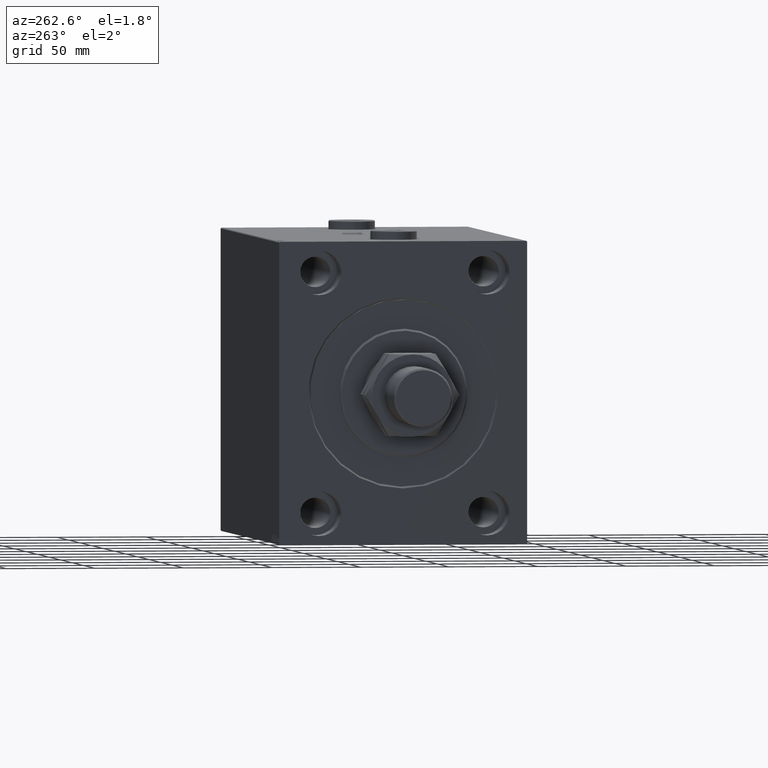
[diagram: clean part render]
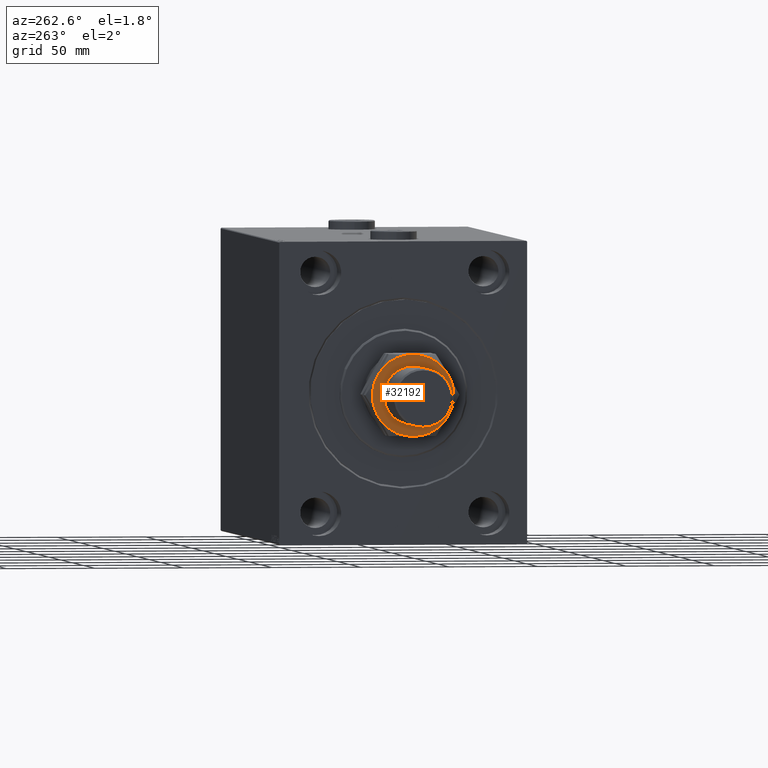
[diagram: same view with one face highlighted and labeled with its STEP entity id]
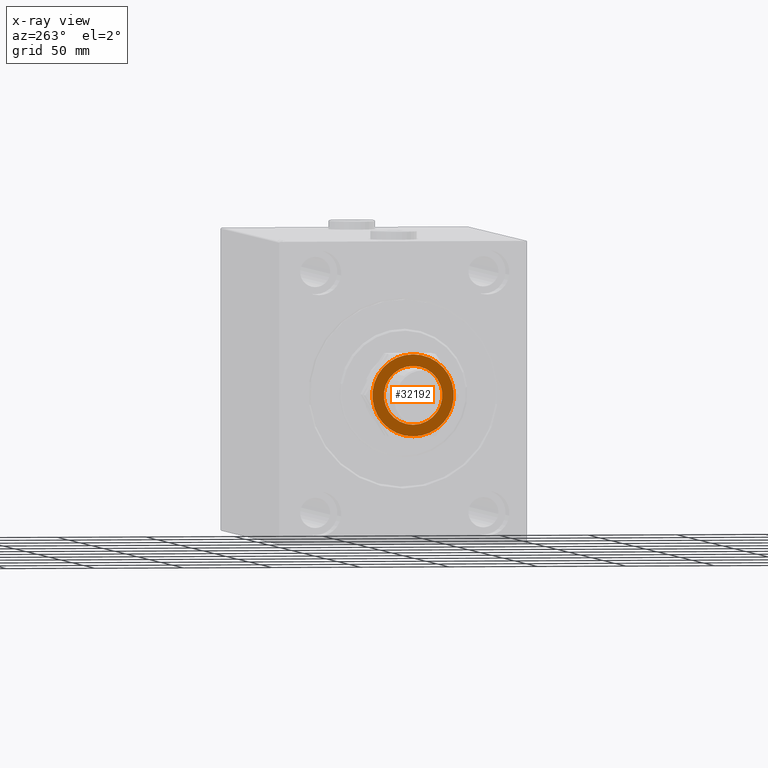
[diagram: x-ray of the same camera — body ghosted, the highlighted face saturated]
A machine part, auxiliary view. The second image highlights one B-rep face of the part: STEP entity #32192.
The next image is the same camera in x-ray: the body ghosted, the highlighted face saturated — about 0% of this face is hidden behind the body in this view.
In plain terms, the highlighted planar face has unit normal (-1, 0, 0).
Its self-contained STEP definition (entity closure, byte-faithful):
#575 = CIRCLE ( 'NONE', #15741, 22.99999999999999645 ) ;
#716 = EDGE_LOOP ( 'NONE', ( #29755, #39332 ) ) ;
#1366 = DIRECTION ( 'NONE',  ( 0.000000000000000000, 0.000000000000000000, 1.000000000000000000 ) ) ;
#1997 = DIRECTION ( 'NONE',  ( 0.000000000000000000, 0.000000000000000000, 1.000000000000000000 ) ) ;
#2565 = AXIS2_PLACEMENT_3D ( 'NONE', #6525, #43348, #43110 ) ;
#2655 = CARTESIAN_POINT ( 'NONE',  ( 0.000000000000000000, 0.000000000000000000, 28.00000000000000000 ) ) ;
#3219 = AXIS2_PLACEMENT_3D ( 'NONE', #2655, #38537, #20255 ) ;
#5248 = DIRECTION ( 'NONE',  ( 1.000000000000000000, 0.000000000000000000, 0.000000000000000000 ) ) ;
#6373 = CARTESIAN_POINT ( 'NONE',  ( 16.50000000000000000, 0.000000000000000000, 28.00000000000000000 ) ) ;
#6525 = CARTESIAN_POINT ( 'NONE',  ( 0.000000000000000000, 0.000000000000000000, 28.00000000000000000 ) ) ;
#7456 = CARTESIAN_POINT ( 'NONE',  ( -11.49999999999999822, 19.91858428704208706, 28.00000000000000000 ) ) ;
#8632 = CIRCLE ( 'NONE', #2565, 22.99999999999999645 ) ;
#9312 = FACE_OUTER_BOUND ( 'NONE', #9918, .T. ) ;
#9768 = EDGE_CURVE ( 'NONE', #40164, #23533, #13343, .T. ) ;
#9918 = EDGE_LOOP ( 'NONE', ( #28875, #43156, #43723, #41313, #32951, #42946 ) ) ;
#9936 = VERTEX_POINT ( 'NONE', #43073 ) ;
#10008 = FACE_BOUND ( 'NONE', #716, .T. ) ;
#10386 = AXIS2_PLACEMENT_3D ( 'NONE', #30433, #44938, #5248 ) ;
#12501 = CARTESIAN_POINT ( 'NONE',  ( 22.99999999999999645, 0.000000000000000000, 28.00000000000000000 ) ) ;
#12684 = EDGE_CURVE ( 'NONE', #33861, #9936, #25574, .T. ) ;
#13086 = DIRECTION ( 'NONE',  ( 1.000000000000000000, 0.000000000000000000, 0.000000000000000000 ) ) ;
#13343 = CIRCLE ( 'NONE', #43703, 22.99999999999999645 ) ;
#13520 = EDGE_CURVE ( 'NONE', #23384, #31201, #575, .T. ) ;
#13945 = CIRCLE ( 'NONE', #46573, 16.50000000000000000 ) ;
#15741 = AXIS2_PLACEMENT_3D ( 'NONE', #26459, #1997, #30036 ) ;
#17000 = AXIS2_PLACEMENT_3D ( 'NONE', #30667, #17111, #13086 ) ;
#17111 = DIRECTION ( 'NONE',  ( 0.000000000000000000, 0.000000000000000000, 1.000000000000000000 ) ) ;
#17125 = VERTEX_POINT ( 'NONE', #17833 ) ;
#17161 = EDGE_CURVE ( 'NONE', #17125, #23384, #22625, .T. ) ;
#17792 = CIRCLE ( 'NONE', #17000, 22.99999999999999645 ) ;
#17833 = CARTESIAN_POINT ( 'NONE',  ( -22.99999999999999645, 0.000000000000000000, 28.00000000000000000 ) ) ;
#19363 = DIRECTION ( 'NONE',  ( 1.000000000000000000, 0.000000000000000000, 0.000000000000000000 ) ) ;
#20255 = DIRECTION ( 'NONE',  ( 1.000000000000000000, 0.000000000000000000, -0.000000000000000000 ) ) ;
#20302 = EDGE_CURVE ( 'NONE', #23533, #17125, #41614, .T. ) ;
#22625 = CIRCLE ( 'NONE', #23414, 22.99999999999999645 ) ;
#23384 = VERTEX_POINT ( 'NONE', #23872 ) ;
#23414 = AXIS2_PLACEMENT_3D ( 'NONE', #42545, #38752, #46829 ) ;
#23533 = VERTEX_POINT ( 'NONE', #7456 ) ;
#23872 = CARTESIAN_POINT ( 'NONE',  ( -11.50000000000000533, -19.91858428704208706, 28.00000000000000000 ) ) ;
#25200 = VERTEX_POINT ( 'NONE', #12501 ) ;
#25574 = CIRCLE ( 'NONE', #10386, 16.50000000000000000 ) ;
#26459 = CARTESIAN_POINT ( 'NONE',  ( 0.000000000000000000, 0.000000000000000000, 28.00000000000000000 ) ) ;
#26782 = DIRECTION ( 'NONE',  ( 1.000000000000000000, 0.000000000000000000, 0.000000000000000000 ) ) ;
#28875 = ORIENTED_EDGE ( 'NONE', *, *, #42452, .T. ) ;
#29755 = ORIENTED_EDGE ( 'NONE', *, *, #12684, .T. ) ;
#29821 = DIRECTION ( 'NONE',  ( -0.000000000000000000, -0.000000000000000000, -1.000000000000000000 ) ) ;
#30036 = DIRECTION ( 'NONE',  ( 1.000000000000000000, 0.000000000000000000, 0.000000000000000000 ) ) ;
#30433 = CARTESIAN_POINT ( 'NONE',  ( 0.000000000000000000, 0.000000000000000000, 28.00000000000000000 ) ) ;
#30667 = CARTESIAN_POINT ( 'NONE',  ( 0.000000000000000000, 0.000000000000000000, 28.00000000000000000 ) ) ;
#31201 = VERTEX_POINT ( 'NONE', #46078 ) ;
#31746 = AXIS2_PLACEMENT_3D ( 'NONE', #44618, #1366, #26782 ) ;
#32192 = ADVANCED_FACE ( 'NONE', ( #10008, #9312 ), #45910, .T. ) ;
#32951 = ORIENTED_EDGE ( 'NONE', *, *, #17161, .T. ) ;
#33861 = VERTEX_POINT ( 'NONE', #6373 ) ;
#37650 = CARTESIAN_POINT ( 'NONE',  ( 0.000000000000000000, 0.000000000000000000, 28.00000000000000000 ) ) ;
#38537 = DIRECTION ( 'NONE',  ( 0.000000000000000000, 0.000000000000000000, 1.000000000000000000 ) ) ;
#38752 = DIRECTION ( 'NONE',  ( 0.000000000000000000, 0.000000000000000000, 1.000000000000000000 ) ) ;
#39254 = EDGE_CURVE ( 'NONE', #9936, #33861, #13945, .T. ) ;
#39332 = ORIENTED_EDGE ( 'NONE', *, *, #39254, .T. ) ;
#40164 = VERTEX_POINT ( 'NONE', #44800 ) ;
#41313 = ORIENTED_EDGE ( 'NONE', *, *, #20302, .T. ) ;
#41614 = CIRCLE ( 'NONE', #31746, 22.99999999999999645 ) ;
#41902 = DIRECTION ( 'NONE',  ( 0.000000000000000000, 0.000000000000000000, 1.000000000000000000 ) ) ;
#42452 = EDGE_CURVE ( 'NONE', #31201, #25200, #8632, .T. ) ;
#42545 = CARTESIAN_POINT ( 'NONE',  ( 0.000000000000000000, 0.000000000000000000, 28.00000000000000000 ) ) ;
#42840 = CARTESIAN_POINT ( 'NONE',  ( 0.000000000000000000, 0.000000000000000000, 28.00000000000000000 ) ) ;
#42946 = ORIENTED_EDGE ( 'NONE', *, *, #13520, .T. ) ;
#43073 = CARTESIAN_POINT ( 'NONE',  ( -16.50000000000000000, 2.020667218593133100E-15, 28.00000000000000000 ) ) ;
#43110 = DIRECTION ( 'NONE',  ( 1.000000000000000000, 0.000000000000000000, 0.000000000000000000 ) ) ;
#43156 = ORIENTED_EDGE ( 'NONE', *, *, #43673, .T. ) ;
#43348 = DIRECTION ( 'NONE',  ( 0.000000000000000000, 0.000000000000000000, 1.000000000000000000 ) ) ;
#43673 = EDGE_CURVE ( 'NONE', #25200, #40164, #17792, .T. ) ;
#43703 = AXIS2_PLACEMENT_3D ( 'NONE', #42840, #41902, #46176 ) ;
#43723 = ORIENTED_EDGE ( 'NONE', *, *, #9768, .T. ) ;
#44618 = CARTESIAN_POINT ( 'NONE',  ( 0.000000000000000000, 0.000000000000000000, 28.00000000000000000 ) ) ;
#44800 = CARTESIAN_POINT ( 'NONE',  ( 11.49999999999999822, 19.91858428704208706, 28.00000000000000000 ) ) ;
#44938 = DIRECTION ( 'NONE',  ( -0.000000000000000000, -0.000000000000000000, -1.000000000000000000 ) ) ;
#45910 = PLANE ( 'NONE',  #3219 ) ;
#46078 = CARTESIAN_POINT ( 'NONE',  ( 11.50000000000000533, -19.91858428704207995, 28.00000000000000000 ) ) ;
#46176 = DIRECTION ( 'NONE',  ( 1.000000000000000000, 0.000000000000000000, 0.000000000000000000 ) ) ;
#46573 = AXIS2_PLACEMENT_3D ( 'NONE', #37650, #29821, #19363 ) ;
#46829 = DIRECTION ( 'NONE',  ( 1.000000000000000000, 0.000000000000000000, 0.000000000000000000 ) ) ;